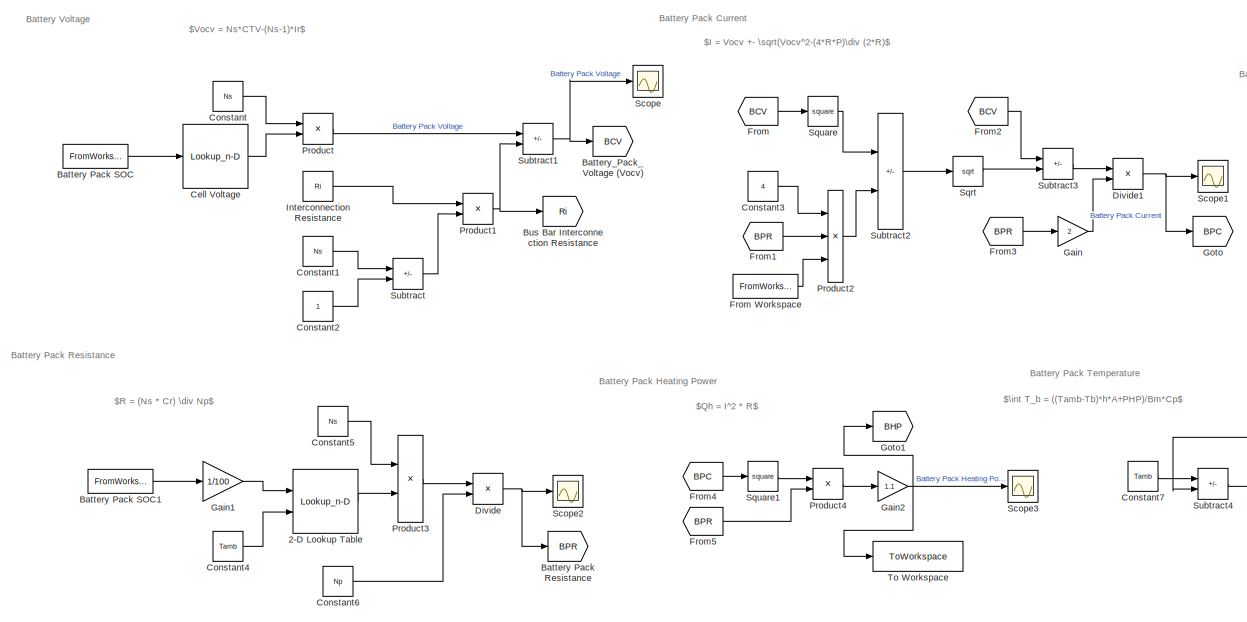
[diagram: root canvas - part 1/3, left side, full height]
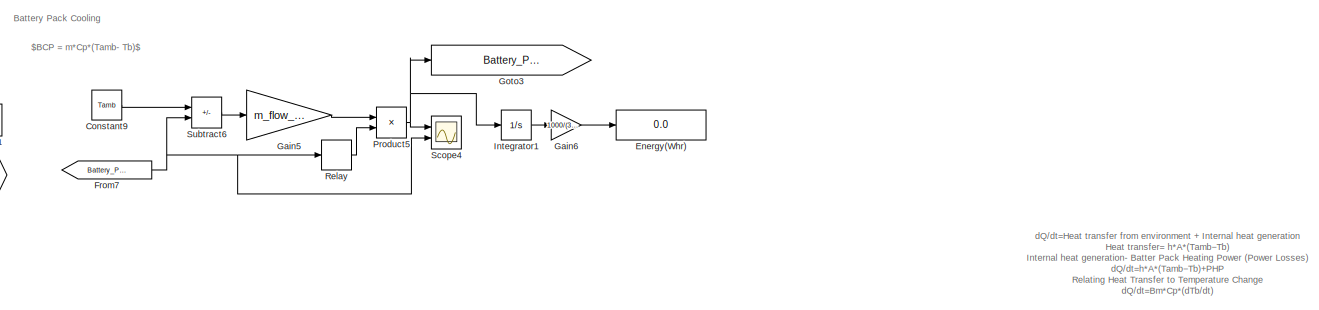
[diagram: root canvas - part 2/3, middle right region]
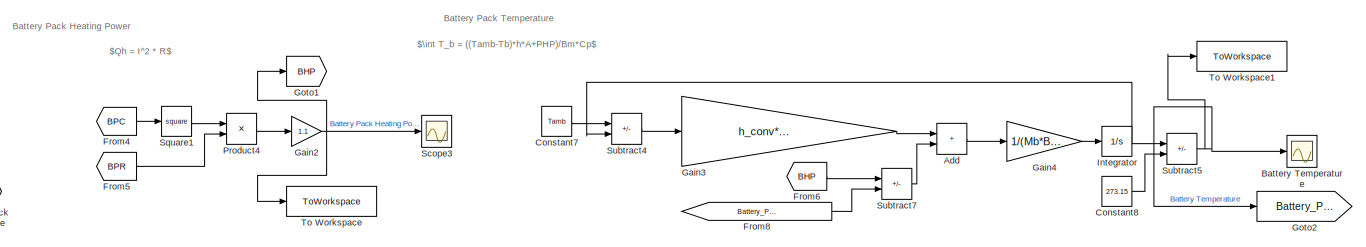
[diagram: root canvas - part 3/3, bottom center region]
MODEL slx_2bc85cbf480f
KIND model
CONFIG AbsTol = auto
CONFIG EnableMultiTasking = off
CONFIG FixedStep = 1
CONFIG MaxStep = auto
CONFIG MinStep = auto
CONFIG RelTol = 1e-3
CONFIG SampleTimeConstraint = Unconstrained
CONFIG SolverName = FixedStepAuto
CONFIG StartTime = 0.0
CONFIG StopTime = 1400
BLOCK [Lookup_n-D] 2-D Lookup Table
  BreakpointsForDimension1 = SOC
  BreakpointsForDimension2 = T
  InputPortMap = u0,u1
  InternalRulePriority = Speed
  Ports = [2, 1]
  RndMeth = Simplest
  Table = Cr
BLOCK [Sum] Add
  IconShape = rectangular
  Ports = [2, 1]
BLOCK [Goto] Battery Pack Resistance
  GotoTag = BPR
  TagVisibility = global
BLOCK [FromWorkspace] Battery Pack SOC
  VariableName = BSOC
BLOCK [FromWorkspace] Battery Pack SOC1
  VariableName = BSOC
BLOCK [Scope] Battery Temperature
  Floating = off
  NumInputPorts = 1
  Ports = [1]
  ScopeSpecificationString = Simulink.scopes.TimeScopeBlockCfg('CurrentConfiguration', extmgr.ConfigurationSet(extmgr.Configuration('Core','General UI',true),extmgr.Configuration('Core','Source UI',true),extmgr.Configuration('Sources','WiredSimulink',true,'DataLoggingVariableName','ScopeData4'),extmgr.Configuration('Visuals','Time Domain',true,'SerializedDisplays',{struct('MinYLimReal','19.8246','MaxYLimReal','20.0786','YLabe...<+1376ch>
BLOCK [Goto] Battery_Pack_Voltage (Vocv)
  GotoTag = BCV
  TagVisibility = global
BLOCK [Goto] Bus Bar Interconnection Resistance
  GotoTag = Ri
  TagVisibility = global
BLOCK [Lookup_n-D] Cell Voltage
  BreakpointsForDimension1 = cell_volatge(:,2)
  InputPortMap = u0
  InternalRulePriority = Speed
  NumberOfTableDimensions = 1
  Ports = [1, 1]
  RndMeth = Simplest
  Table = cell_volatge(:,1)
BLOCK [Constant] Constant
  Value = Ns
BLOCK [Constant] Constant1
  Value = Ns
BLOCK [Constant] Constant2
BLOCK [Constant] Constant3
  Value = 4
BLOCK [Constant] Constant4
  Value = Tamb
BLOCK [Constant] Constant5
  Value = Ns
BLOCK [Constant] Constant6
  Value = Np
BLOCK [Constant] Constant7
  Value = Tamb
BLOCK [Constant] Constant8
  Value = 273.15
BLOCK [Constant] Constant9
  Value = Tamb
BLOCK [Product] Divide
  Inputs = */
  Ports = [2, 1]
BLOCK [Product] Divide1
  Inputs = */
  Ports = [2, 1]
BLOCK [Display] Energy(Whr)
  Decimation = 1
  Ports = [1]
BLOCK [From] From
  GotoTag = BCV
  TagVisibility = global
BLOCK [FromWorkspace] From Workspace
  VariableName = Battery_power
BLOCK [From] From1
  GotoTag = BPR
  TagVisibility = global
BLOCK [From] From2
  GotoTag = BCV
  TagVisibility = global
BLOCK [From] From3
  GotoTag = BPR
  TagVisibility = global
BLOCK [From] From4
  GotoTag = BPC
  TagVisibility = global
BLOCK [From] From5
  GotoTag = BPR
  TagVisibility = global
BLOCK [From] From6
  GotoTag = BHP
  TagVisibility = global
BLOCK [From] From7
  GotoTag = Battery_Pack_Temp
  TagVisibility = global
BLOCK [From] From8
  GotoTag = Battery_Pack_Cooling_Power
  TagVisibility = global
BLOCK [Gain] Gain
  Gain = 2
BLOCK [Gain] Gain1
  Gain = 1/100
BLOCK [Gain] Gain2
  Gain = 1.1
BLOCK [Gain] Gain3
  Gain = h_conv*(Cell_Width*Cell_length*Ns*Np)
BLOCK [Gain] Gain4
  Gain = 1/(Mb*Bc)
BLOCK [Gain] Gain5
  Gain = m_flow_air*c
BLOCK [Gain] Gain6
  Gain = 1000/(3.6*10^6)
BLOCK [Goto] Goto
  GotoTag = BPC
  TagVisibility = global
BLOCK [Goto] Goto1
  GotoTag = BHP
  TagVisibility = global
BLOCK [Goto] Goto2
  GotoTag = Battery_Pack_Temp
  TagVisibility = global
BLOCK [Goto] Goto3
  GotoTag = Battery_Pack_Cooling_Power
  TagVisibility = global
BLOCK [Integrator] Integrator
  InitialCondition = 293
  Ports = [1, 1]
BLOCK [Integrator] Integrator1
  Ports = [1, 1]
BLOCK [Constant] Interconnection Resistance
  Value = Ri
BLOCK [Product] Product
  Ports = [2, 1]
BLOCK [Product] Product1
  Ports = [2, 1]
BLOCK [Product] Product2
  Inputs = 3
  Ports = [3, 1]
BLOCK [Product] Product3
  Ports = [2, 1]
BLOCK [Product] Product4
  Ports = [2, 1]
BLOCK [Product] Product5
  Ports = [2, 1]
BLOCK [Relay] Relay
  OffSwitchValue = 20
  OnSwitchValue = 30
BLOCK [Scope] Scope
  Floating = off
  NumInputPorts = 1
  Ports = [1]
  ScopeSpecificationString = Simulink.scopes.TimeScopeBlockCfg('CurrentConfiguration', extmgr.ConfigurationSet(extmgr.Configuration('Core','General UI',true),extmgr.Configuration('Core','Source UI',true),extmgr.Configuration('Sources','WiredSimulink',true),extmgr.Configuration('Visuals','Time Domain',true,'SerializedDisplays',{struct('MinYLimReal','382.2695','MaxYLimReal','406.0295','YLabelReal','','MinYLimMag','382.2695','Ma...<+1346ch>
BLOCK [Scope] Scope1
  Floating = off
  NumInputPorts = 1
  Ports = [1]
  ScopeSpecificationString = Simulink.scopes.TimeScopeBlockCfg('CurrentConfiguration', extmgr.ConfigurationSet(extmgr.Configuration('Core','General UI',true),extmgr.Configuration('Core','Source UI',true),extmgr.Configuration('Sources','WiredSimulink',true,'DataLoggingVariableName','ScopeData1'),extmgr.Configuration('Visuals','Time Domain',true,'SerializedDisplays',{struct('MinYLimReal','-12.8996','MaxYLimReal','37.18602','YLa...<+1383ch>
BLOCK [Scope] Scope2
  Floating = off
  NumInputPorts = 1
  Ports = [1]
  ScopeSpecificationString = Simulink.scopes.TimeScopeBlockCfg('CurrentConfiguration', extmgr.ConfigurationSet(extmgr.Configuration('Core','General UI',true),extmgr.Configuration('Core','Source UI',true),extmgr.Configuration('Sources','WiredSimulink',true,'DataLoggingVariableName','ScopeData2'),extmgr.Configuration('Visuals','Time Domain',true,'SerializedDisplays',{struct('MinYLimReal','0.308','MaxYLimReal','0.508','YLabelRea...<+1347ch>
BLOCK [Scope] Scope3
  Floating = off
  NumInputPorts = 1
  Ports = [1]
  ScopeSpecificationString = Simulink.scopes.TimeScopeBlockCfg('CurrentConfiguration', extmgr.ConfigurationSet(extmgr.Configuration('Core','General UI',true),extmgr.Configuration('Core','Source UI',true),extmgr.Configuration('Sources','WiredSimulink',true,'DataLoggingVariableName','ScopeData3'),extmgr.Configuration('Visuals','Time Domain',true,'SerializedDisplays',{struct('MinYLimReal','-58.08532','MaxYLimReal','522.76788','Y...<+1450ch>
BLOCK [Scope] Scope4
  Floating = off
  NumInputPorts = 2
  Ports = [2]
  ScopeSpecificationString = Simulink.scopes.TimeScopeBlockCfg('CurrentConfiguration', extmgr.ConfigurationSet(extmgr.Configuration('Core','General UI',true),extmgr.Configuration('Core','Source UI',true),extmgr.Configuration('Sources','WiredSimulink',true,'DataLoggingVariableName','ScopeData5'),extmgr.Configuration('Visuals','Time Domain',true,'SerializedDisplays',{struct('MinYLimReal','-91579.82358','MaxYLimReal','280463.209...<+2085ch>
BLOCK [Sqrt] Sqrt
BLOCK [Math] Square
  Operator = square
  Ports = [1, 1]
BLOCK [Math] Square1
  Operator = square
  Ports = [1, 1]
BLOCK [Sum] Subtract
  IconShape = rectangular
  Inputs = +-
  Ports = [2, 1]
BLOCK [Sum] Subtract1
  IconShape = rectangular
  Inputs = +-
  Ports = [2, 1]
BLOCK [Sum] Subtract2
  IconShape = rectangular
  Inputs = +-
  Ports = [2, 1]
BLOCK [Sum] Subtract3
  IconShape = rectangular
  Inputs = +-
  Ports = [2, 1]
BLOCK [Sum] Subtract4
  IconShape = rectangular
  Inputs = +-
  Ports = [2, 1]
BLOCK [Sum] Subtract5
  IconShape = rectangular
  Inputs = +-
  Ports = [2, 1]
BLOCK [Sum] Subtract6
  IconShape = rectangular
  Inputs = +-
  Ports = [2, 1]
BLOCK [Sum] Subtract7
  IconShape = rectangular
  Inputs = +-
  Ports = [2, 1]
BLOCK [ToWorkspace] To Workspace
  FixptAsFi = on
  MaxDataPoints = inf
  Ports = [1]
  SampleTime = -1
  SaveFormat = Timeseries
  VariableName = BHP
BLOCK [ToWorkspace] To Workspace1
  FixptAsFi = on
  MaxDataPoints = inf
  Ports = [1]
  SampleTime = -1
  SaveFormat = Timeseries
  VariableName = BPT
ANNOTATION (root): Battery Pack Heating Power
ANNOTATION (root): dQ/dt=Heat transfer from environment + Internal heat generation Heat transfer= h*A*(Tamb​−Tb​) Internal heat generation- Batter Pack Heating Power (Power Losses) dQ​/dt=h*A*(Tamb​−Tb​)+PHP Relating Heat Transfer to Temperature Change dQ/dt​=Bm*Cp*(dTb​​/dt) h*A*(Tamb​−Tb​)+PHP = Bm*Cp*(dTb​​/dt) (h*A*(Tamb​−Tb​)+PHP)/ Bm*Cp = (dTb​​/dt) The temperature change of the battery pack over time based on...<+52ch>
ANNOTATION (root): $Qh = I^2 * R$
ANNOTATION (root): $BCP = m*Cp*(Tamb- Tb)$
ANNOTATION (root): $\int T_b = ((Tamb-Tb)*h*A+PHP)/Bm*Cp$
ANNOTATION (root): $I = Vocv +- \sqrt(Vocv^2-(4*R*P)\div (2*R)$
ANNOTATION (root): $R = (Ns * Cr) \div Np$
ANNOTATION (root): $Vocv = Ns*CTV-(Ns-1)*Ir$
ANNOTATION (root): Battery Pack Cooling
ANNOTATION (root): Battery Pack Current
ANNOTATION (root): Battery Pack Resistance
ANNOTATION (root): Battery Pack Temperature
ANNOTATION (root): Battery Voltage
LINE 2-D Lookup Table:1 -> Product3:2
LINE Add:1 -> Gain4:1
LINE Battery Pack SOC1:1 -> Gain1:1
LINE Battery Pack SOC:1 -> Cell Voltage:1
LINE Cell Voltage:1 -> Product:2
LINE Constant1:1 -> Subtract:1
LINE Constant2:1 -> Subtract:2
LINE Constant3:1 -> Product2:1
LINE Constant4:1 -> 2-D Lookup Table:2
LINE Constant5:1 -> Product3:1
LINE Constant6:1 -> Divide:2
LINE Constant7:1 -> Subtract4:1
LINE Constant8:1 -> Subtract5:2
LINE Constant9:1 -> Subtract6:1
LINE Constant:1 -> Product:1
NET Divide1:1 -> Goto:1, Scope1:1
NET Divide:1 -> Battery Pack Resistance:1, Scope2:1
LINE From Workspace:1 -> Product2:3
LINE From1:1 -> Product2:2
LINE From2:1 -> Subtract3:1
LINE From3:1 -> Gain:1
LINE From4:1 -> Square1:1
LINE From5:1 -> Product4:2
LINE From6:1 -> Subtract7:1
NET From7:1 -> Relay:1, Scope4:2, Subtract6:2
LINE From8:1 -> Subtract7:2
LINE From:1 -> Square:1
LINE Gain1:1 -> 2-D Lookup Table:1
NET Gain2:1 -> Goto1:1, Scope3:1, To Workspace:1
LINE Gain3:1 -> Add:1
LINE Gain4:1 -> Integrator:1
LINE Gain5:1 -> Product5:1
LINE Gain6:1 -> Energy(Whr):1
LINE Gain:1 -> Divide1:2
LINE Integrator1:1 -> Gain6:1
NET Integrator:1 -> Subtract4:2, Subtract5:1
LINE Interconnection Resistance:1 -> Product1:1
NET Product1:1 -> Bus Bar Interconnection Resistance:1, Subtract1:2
LINE Product2:1 -> Subtract2:2
LINE Product3:1 -> Divide:1
LINE Product4:1 -> Gain2:1
NET Product5:1 -> Goto3:1, Integrator1:1, Scope4:1
LINE Product:1 -> Subtract1:1
LINE Relay:1 -> Product5:2
LINE Sqrt:1 -> Subtract3:2
LINE Square1:1 -> Product4:1
LINE Square:1 -> Subtract2:1
NET Subtract1:1 -> Battery_Pack_Voltage (Vocv):1, Scope:1
LINE Subtract2:1 -> Sqrt:1
LINE Subtract3:1 -> Divide1:1
LINE Subtract4:1 -> Gain3:1
NET Subtract5:1 -> Battery Temperature:1, Goto2:1, To Workspace1:1
LINE Subtract6:1 -> Gain5:1
LINE Subtract7:1 -> Add:2
LINE Subtract:1 -> Product1:2
note: NET lines group one-source signal fan-out (src -> all destinations, sorted); 1:1 wires keep LINE
